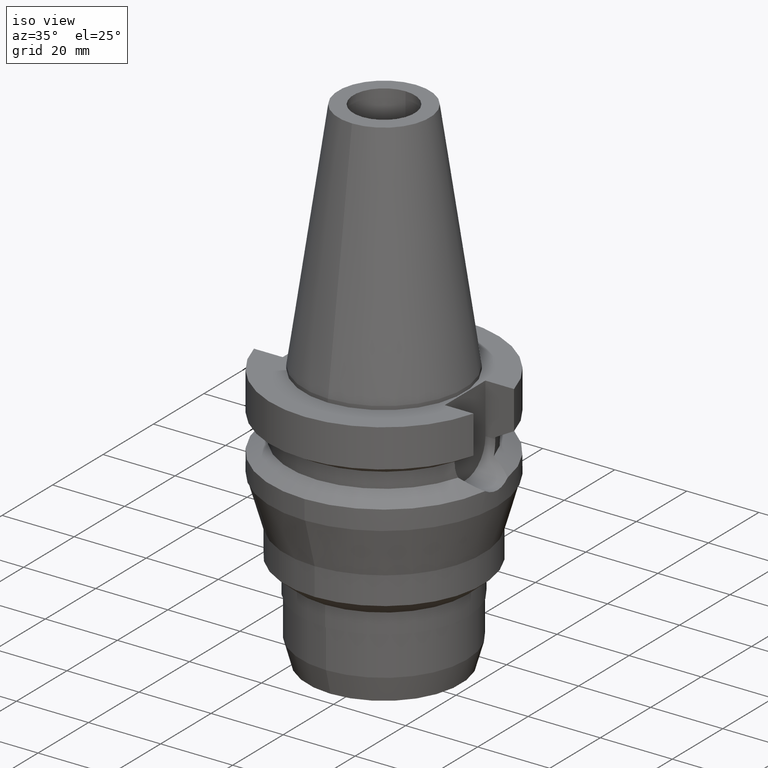
[diagram: clean part render]
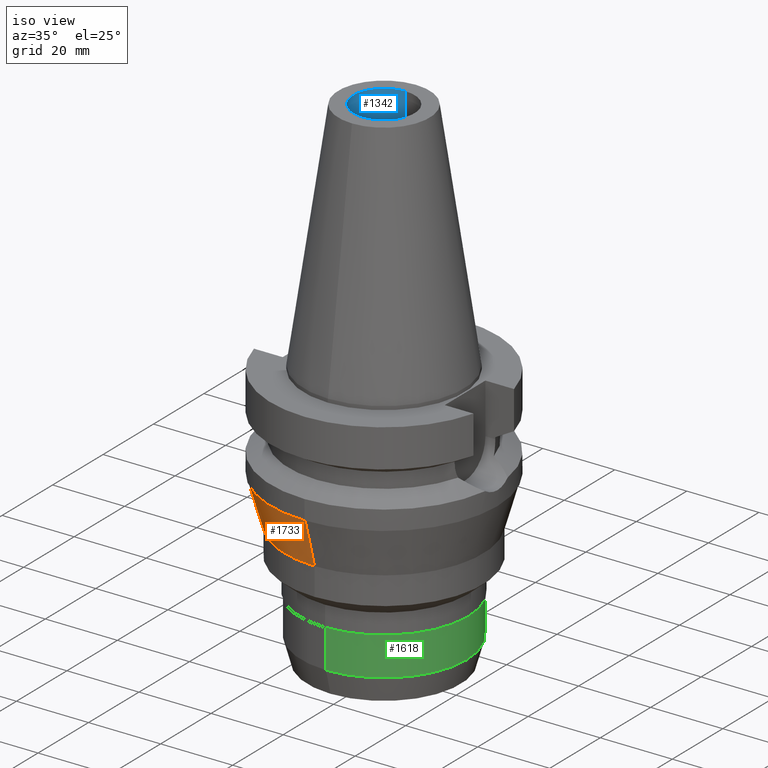
[diagram: same view with three faces highlighted in distinct colors, each labeled with its STEP entity id]
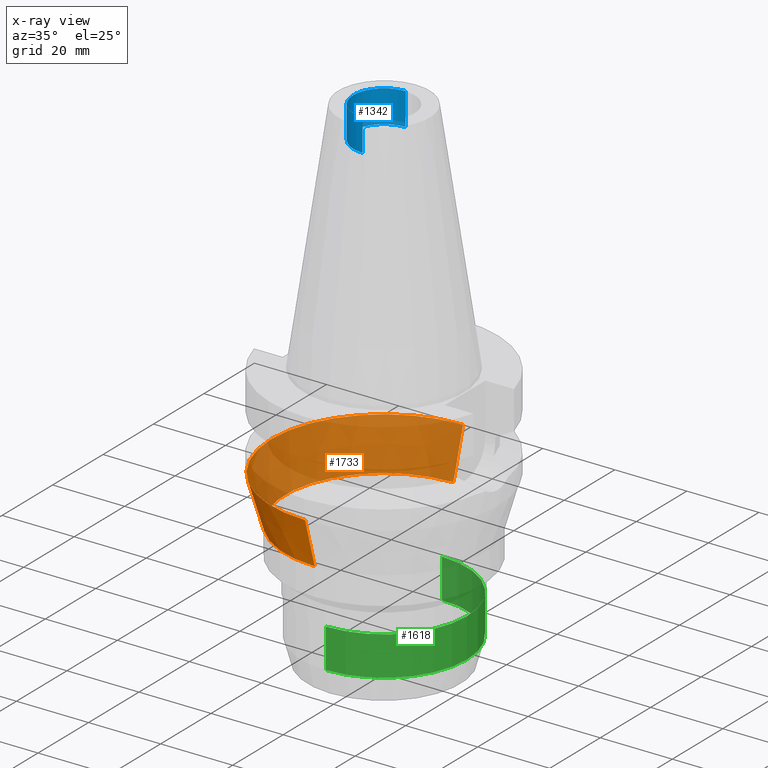
[diagram: x-ray of the same camera — body ghosted, the three highlighted faces saturated]
A machine part, iso view with three faces highlighted in distinct colors.
The next image is the same camera in x-ray (body ghosted, the three faces saturated) — at least one of them is partly hidden behind the body in this view.
Their STEP definitions:

[orange] entity #1733 — the highlighted conical surface has half-angle 16.294 deg.
#490=DIRECTION('',(0.E0,2.805661968069E-1,-9.598346780614E-1));
#491=VECTOR('',#490,1.354399908353E1);
#492=CARTESIAN_POINT('',(0.E0,-3.129998831242E1,-2.7E1));
#493=LINE('',#492,#491);
#497=CARTESIAN_POINT('',(0.E0,0.E0,-4.E1));
#498=DIRECTION('',(0.E0,0.E0,-1.E0));
#499=DIRECTION('',(0.E0,-1.E0,0.E0));
#500=AXIS2_PLACEMENT_3D('',#497,#498,#499);
#505=DIRECTION('',(0.E0,-2.805661968069E-1,-9.598346780614E-1));
#506=VECTOR('',#505,1.354399908353E1);
#507=CARTESIAN_POINT('',(0.E0,3.129998831242E1,-2.7E1));
#508=LINE('',#507,#506);
#536=CARTESIAN_POINT('',(0.E0,0.E0,-2.7E1));
#537=DIRECTION('',(0.E0,0.E0,-1.E0));
#538=DIRECTION('',(0.E0,-1.E0,0.E0));
#539=AXIS2_PLACEMENT_3D('',#536,#537,#538);
#1176=CARTESIAN_POINT('',(0.E0,2.75E1,-4.E1));
#1177=VERTEX_POINT('',#1176);
#1178=CARTESIAN_POINT('',(0.E0,-2.75E1,-4.E1));
#1179=VERTEX_POINT('',#1178);
#1180=CARTESIAN_POINT('',(0.E0,3.129998831242E1,-2.7E1));
#1181=VERTEX_POINT('',#1180);
#1182=CARTESIAN_POINT('',(0.E0,-3.129998831242E1,-2.7E1));
#1183=VERTEX_POINT('',#1182);
#1719=CARTESIAN_POINT('',(0.E0,0.E0,-3.35E1));
#1720=DIRECTION('',(0.E0,0.E0,1.E0));
#1721=DIRECTION('',(0.E0,1.E0,0.E0));
#1722=AXIS2_PLACEMENT_3D('',#1719,#1720,#1721);
#1723=CONICAL_SURFACE('',#1722,2.939999415621E1,1.6294E1);
#1725=ORIENTED_EDGE('',*,*,#1724,.F.);
#1727=ORIENTED_EDGE('',*,*,#1726,.F.);
#1729=ORIENTED_EDGE('',*,*,#1728,.T.);
#1730=ORIENTED_EDGE('',*,*,#1712,.T.);
#1731=EDGE_LOOP('',(#1725,#1727,#1729,#1730));
#1732=FACE_OUTER_BOUND('',#1731,.F.);
#501=CIRCLE('',#500,2.75E1);
#540=CIRCLE('',#539,3.129998831242E1);
#1712=EDGE_CURVE('',#1179,#1177,#501,.T.);
#1724=EDGE_CURVE('',#1181,#1177,#508,.T.);
#1726=EDGE_CURVE('',#1183,#1181,#540,.T.);
#1728=EDGE_CURVE('',#1183,#1179,#493,.T.);
#1733=ADVANCED_FACE('',(#1732),#1723,.T.);

[blue] entity #1342 — the highlighted cylindrical surface (partial cylindrical patch) has radius 8.5 mm, axis along (0, 0, -1).
#72=CARTESIAN_POINT('',(0.E0,0.E0,6.54E1));
#73=DIRECTION('',(0.E0,0.E0,1.E0));
#74=DIRECTION('',(0.E0,1.E0,0.E0));
#75=AXIS2_PLACEMENT_3D('',#72,#73,#74);
#80=DIRECTION('',(0.E0,0.E0,1.E0));
#81=VECTOR('',#80,9.E0);
#82=CARTESIAN_POINT('',(0.E0,8.5E0,5.64E1));
#83=LINE('',#82,#81);
#87=DIRECTION('',(0.E0,0.E0,1.E0));
#88=VECTOR('',#87,9.E0);
#89=CARTESIAN_POINT('',(0.E0,-8.5E0,5.64E1));
#90=LINE('',#89,#88);
#94=CARTESIAN_POINT('',(0.E0,0.E0,5.64E1));
#95=DIRECTION('',(0.E0,0.E0,-1.E0));
#96=DIRECTION('',(0.E0,-1.E0,0.E0));
#97=AXIS2_PLACEMENT_3D('',#94,#95,#96);
#1108=CARTESIAN_POINT('',(0.E0,-8.5E0,6.54E1));
#1109=CARTESIAN_POINT('',(0.E0,8.5E0,6.54E1));
#1110=VERTEX_POINT('',#1108);
#1111=VERTEX_POINT('',#1109);
#1112=CARTESIAN_POINT('',(0.E0,8.5E0,5.64E1));
#1113=VERTEX_POINT('',#1112);
#1114=CARTESIAN_POINT('',(0.E0,-8.5E0,5.64E1));
#1115=VERTEX_POINT('',#1114);
#1330=CARTESIAN_POINT('',(0.E0,0.E0,7.242E1));
#1331=DIRECTION('',(0.E0,0.E0,-1.E0));
#1332=DIRECTION('',(0.E0,-1.E0,0.E0));
#1333=AXIS2_PLACEMENT_3D('',#1330,#1331,#1332);
#1334=CYLINDRICAL_SURFACE('',#1333,8.5E0);
#1335=ORIENTED_EDGE('',*,*,#1320,.F.);
#1337=ORIENTED_EDGE('',*,*,#1336,.F.);
#1338=ORIENTED_EDGE('',*,*,#1323,.T.);
#1339=ORIENTED_EDGE('',*,*,#1310,.F.);
#1340=EDGE_LOOP('',(#1335,#1337,#1338,#1339));
#1341=FACE_OUTER_BOUND('',#1340,.F.);
#76=CIRCLE('',#75,8.5E0);
#98=CIRCLE('',#97,8.5E0);
#1310=EDGE_CURVE('',#1111,#1110,#76,.T.);
#1320=EDGE_CURVE('',#1113,#1111,#83,.T.);
#1323=EDGE_CURVE('',#1115,#1110,#90,.T.);
#1336=EDGE_CURVE('',#1115,#1113,#98,.T.);
#1342=ADVANCED_FACE('',(#1341),#1334,.F.);

[green] entity #1618 — the highlighted cylindrical surface (partial cylindrical patch) has radius 23 mm, axis along (0, 0, -1).
#347=CARTESIAN_POINT('',(0.E0,0.E0,-6.78E1));
#348=DIRECTION('',(0.E0,0.E0,1.E0));
#349=DIRECTION('',(0.E0,-1.E0,0.E0));
#350=AXIS2_PLACEMENT_3D('',#347,#348,#349);
#370=DIRECTION('',(0.E0,-1.157076473371E-13,-1.E0));
#371=VECTOR('',#370,1.09E1);
#372=CARTESIAN_POINT('',(0.E0,-2.3E1,-5.69E1));
#373=LINE('',#372,#371);
#377=DIRECTION('',(0.E0,1.157076473371E-13,-1.E0));
#378=VECTOR('',#377,1.09E1);
#379=CARTESIAN_POINT('',(0.E0,2.3E1,-5.69E1));
#380=LINE('',#379,#378);
#408=CARTESIAN_POINT('',(0.E0,0.E0,-5.69E1));
#409=DIRECTION('',(0.E0,0.E0,-1.E0));
#410=DIRECTION('',(0.E0,1.E0,0.E0));
#411=AXIS2_PLACEMENT_3D('',#408,#409,#410);
#1156=CARTESIAN_POINT('',(0.E0,2.3E1,-6.78E1));
#1157=VERTEX_POINT('',#1156);
#1158=CARTESIAN_POINT('',(0.E0,-2.3E1,-6.78E1));
#1159=VERTEX_POINT('',#1158);
#1160=CARTESIAN_POINT('',(0.E0,2.3E1,-5.69E1));
#1161=VERTEX_POINT('',#1160);
#1162=CARTESIAN_POINT('',(0.E0,-2.3E1,-5.69E1));
#1163=VERTEX_POINT('',#1162);
#1606=CARTESIAN_POINT('',(0.E0,0.E0,7.242E1));
#1607=DIRECTION('',(0.E0,0.E0,-1.E0));
#1608=DIRECTION('',(0.E0,-1.E0,0.E0));
#1609=AXIS2_PLACEMENT_3D('',#1606,#1607,#1608);
#1610=CYLINDRICAL_SURFACE('',#1609,2.3E1);
#1611=ORIENTED_EDGE('',*,*,#1596,.T.);
#1612=ORIENTED_EDGE('',*,*,#1573,.F.);
#1613=ORIENTED_EDGE('',*,*,#1600,.F.);
#1615=ORIENTED_EDGE('',*,*,#1614,.F.);
#1616=EDGE_LOOP('',(#1611,#1612,#1613,#1615));
#1617=FACE_OUTER_BOUND('',#1616,.F.);
#351=CIRCLE('',#350,2.3E1);
#412=CIRCLE('',#411,2.3E1);
#1573=EDGE_CURVE('',#1159,#1157,#351,.T.);
#1596=EDGE_CURVE('',#1161,#1157,#380,.T.);
#1600=EDGE_CURVE('',#1163,#1159,#373,.T.);
#1614=EDGE_CURVE('',#1161,#1163,#412,.T.);
#1618=ADVANCED_FACE('',(#1617),#1610,.T.);